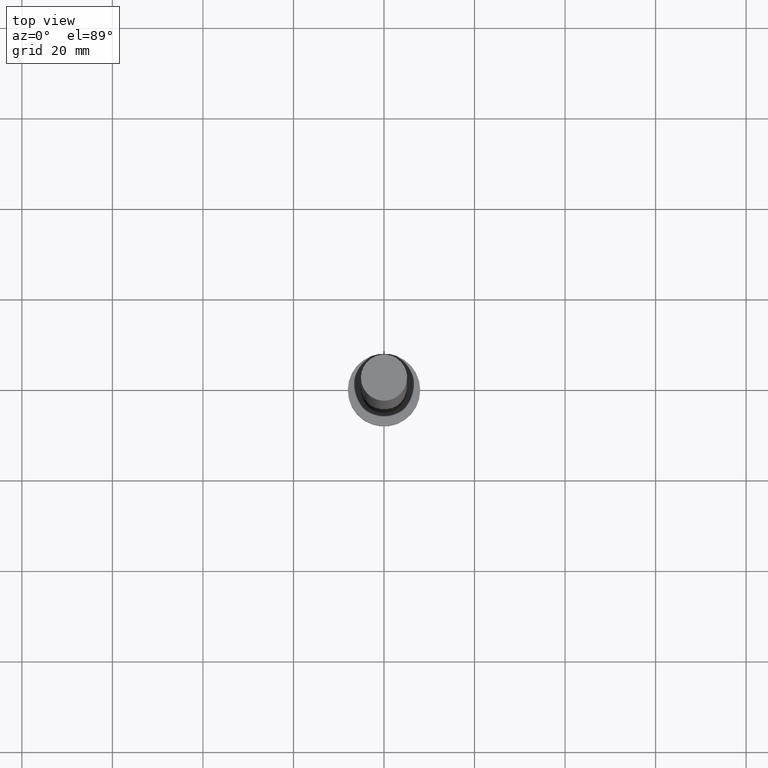
[diagram: clean part render]
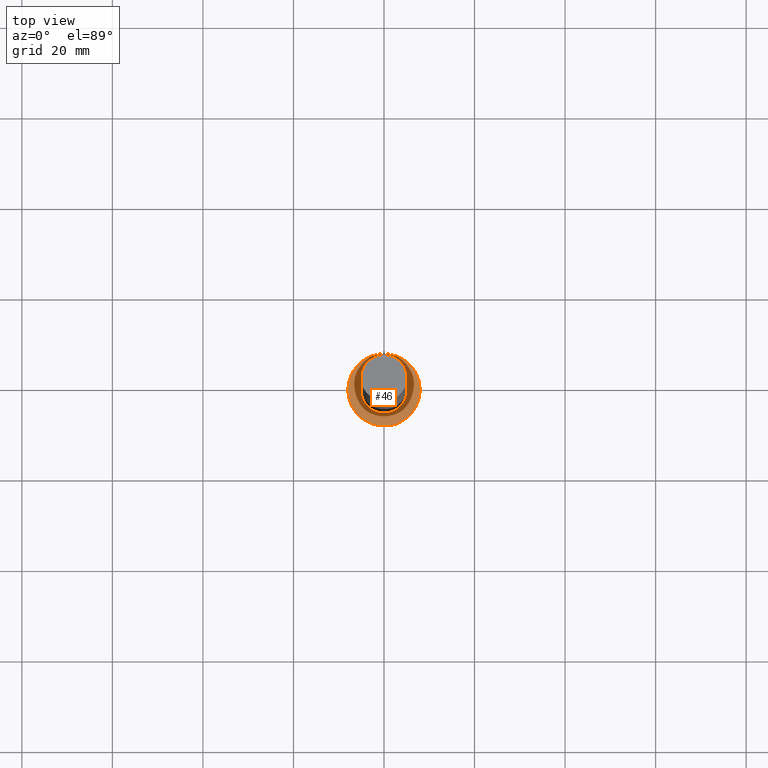
[diagram: same view with one face highlighted and labeled with its STEP entity id]
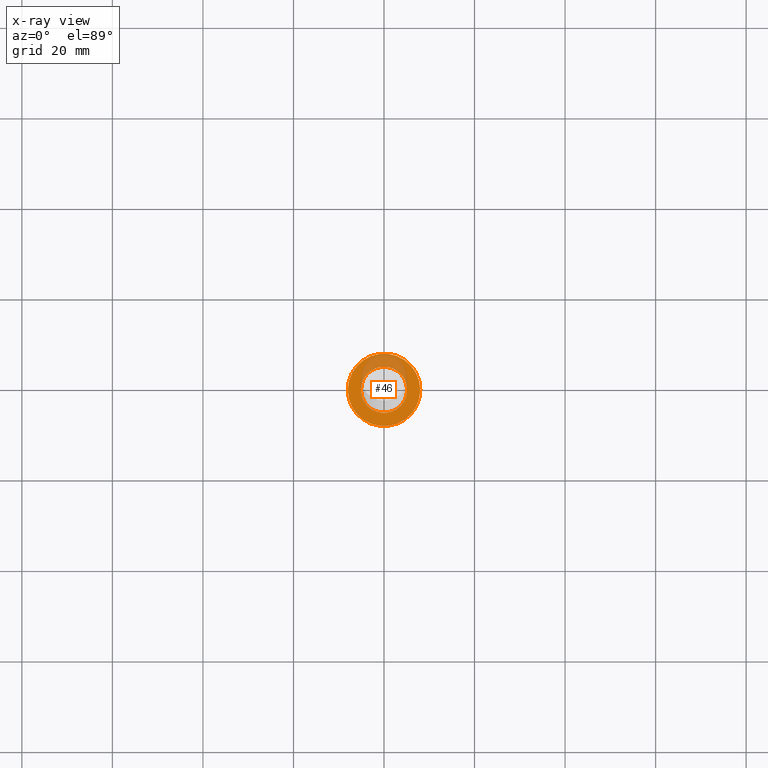
[diagram: x-ray of the same camera — body ghosted, the highlighted face saturated]
A machine part, top view. The second image highlights one B-rep face of the part: STEP entity #46.
The next image is the same camera in x-ray: the body ghosted, the highlighted face saturated — about 23% of this face is hidden behind the body in this view.
In plain terms, the highlighted planar face has unit normal (0, 0, 1).
Its self-contained STEP definition (entity closure, byte-faithful):
#7 = CARTESIAN_POINT ( 'NONE',  ( 0.000000000000000000, 0.000000000000000000, 5.000000000000000000 ) ) ;
#17 = AXIS2_PLACEMENT_3D ( 'NONE', #7, #246, #68 ) ;
#23 = VERTEX_POINT ( 'NONE', #160 ) ;
#25 = CARTESIAN_POINT ( 'NONE',  ( 0.000000000000000000, 0.000000000000000000, 5.000000000000000000 ) ) ;
#39 = EDGE_CURVE ( 'NONE', #23, #164, #212, .T. ) ;
#42 = ORIENTED_EDGE ( 'NONE', *, *, #222, .T. ) ;
#46 = ADVANCED_FACE ( 'NONE', ( #110, #250 ), #108, .T. ) ;
#53 = DIRECTION ( 'NONE',  ( 1.000000000000000000, 0.000000000000000000, 0.000000000000000000 ) ) ;
#54 = CARTESIAN_POINT ( 'NONE',  ( 0.000000000000000000, 0.000000000000000000, 5.000000000000000000 ) ) ;
#62 = VERTEX_POINT ( 'NONE', #189 ) ;
#68 = DIRECTION ( 'NONE',  ( 1.000000000000000000, 0.000000000000000000, -0.000000000000000000 ) ) ;
#70 = AXIS2_PLACEMENT_3D ( 'NONE', #227, #92, #53 ) ;
#72 = CARTESIAN_POINT ( 'NONE',  ( -8.000000000000000000, 0.000000000000000000, 5.000000000000000000 ) ) ;
#81 = EDGE_LOOP ( 'NONE', ( #42, #240 ) ) ;
#88 = CARTESIAN_POINT ( 'NONE',  ( 0.000000000000000000, 0.000000000000000000, 5.000000000000000000 ) ) ;
#89 = DIRECTION ( 'NONE',  ( 1.000000000000000000, 0.000000000000000000, 0.000000000000000000 ) ) ;
#92 = DIRECTION ( 'NONE',  ( 0.000000000000000000, 0.000000000000000000, 1.000000000000000000 ) ) ;
#100 = AXIS2_PLACEMENT_3D ( 'NONE', #25, #244, #225 ) ;
#108 = PLANE ( 'NONE',  #17 ) ;
#110 = FACE_BOUND ( 'NONE', #182, .T. ) ;
#112 = DIRECTION ( 'NONE',  ( 1.000000000000000000, 0.000000000000000000, 0.000000000000000000 ) ) ;
#123 = ORIENTED_EDGE ( 'NONE', *, *, #197, .F. ) ;
#126 = EDGE_CURVE ( 'NONE', #221, #62, #179, .T. ) ;
#132 = DIRECTION ( 'NONE',  ( 0.000000000000000000, 0.000000000000000000, 1.000000000000000000 ) ) ;
#152 = CIRCLE ( 'NONE', #70, 8.000000000000000000 ) ;
#153 = CARTESIAN_POINT ( 'NONE',  ( -5.099999999999999645, 0.000000000000000000, 5.000000000000000000 ) ) ;
#160 = CARTESIAN_POINT ( 'NONE',  ( 8.000000000000000000, 9.797174393178825657E-16, 5.000000000000000000 ) ) ;
#164 = VERTEX_POINT ( 'NONE', #72 ) ;
#170 = AXIS2_PLACEMENT_3D ( 'NONE', #88, #132, #112 ) ;
#179 = CIRCLE ( 'NONE', #226, 5.099999999999999645 ) ;
#182 = EDGE_LOOP ( 'NONE', ( #220, #123 ) ) ;
#189 = CARTESIAN_POINT ( 'NONE',  ( 5.099999999999999645, 6.245698675651500839E-16, 5.000000000000000000 ) ) ;
#197 = EDGE_CURVE ( 'NONE', #62, #221, #219, .T. ) ;
#211 = DIRECTION ( 'NONE',  ( 0.000000000000000000, 0.000000000000000000, 1.000000000000000000 ) ) ;
#212 = CIRCLE ( 'NONE', #100, 8.000000000000000000 ) ;
#219 = CIRCLE ( 'NONE', #170, 5.099999999999999645 ) ;
#220 = ORIENTED_EDGE ( 'NONE', *, *, #126, .F. ) ;
#221 = VERTEX_POINT ( 'NONE', #153 ) ;
#222 = EDGE_CURVE ( 'NONE', #164, #23, #152, .T. ) ;
#225 = DIRECTION ( 'NONE',  ( 1.000000000000000000, 0.000000000000000000, 0.000000000000000000 ) ) ;
#226 = AXIS2_PLACEMENT_3D ( 'NONE', #54, #211, #89 ) ;
#227 = CARTESIAN_POINT ( 'NONE',  ( 0.000000000000000000, 0.000000000000000000, 5.000000000000000000 ) ) ;
#240 = ORIENTED_EDGE ( 'NONE', *, *, #39, .T. ) ;
#244 = DIRECTION ( 'NONE',  ( 0.000000000000000000, 0.000000000000000000, 1.000000000000000000 ) ) ;
#246 = DIRECTION ( 'NONE',  ( 0.000000000000000000, 0.000000000000000000, 1.000000000000000000 ) ) ;
#250 = FACE_OUTER_BOUND ( 'NONE', #81, .T. ) ;